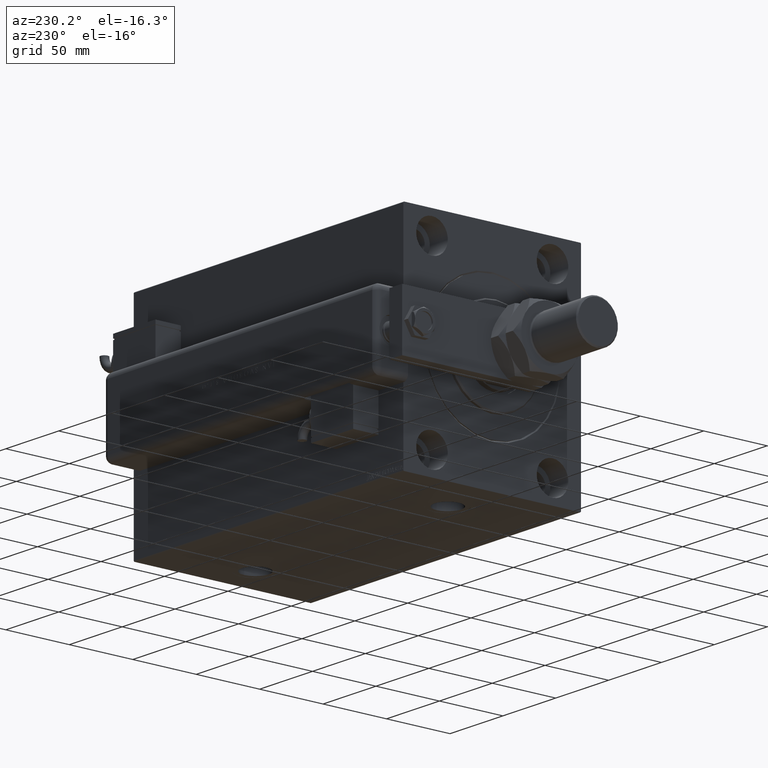
[diagram: clean part render]
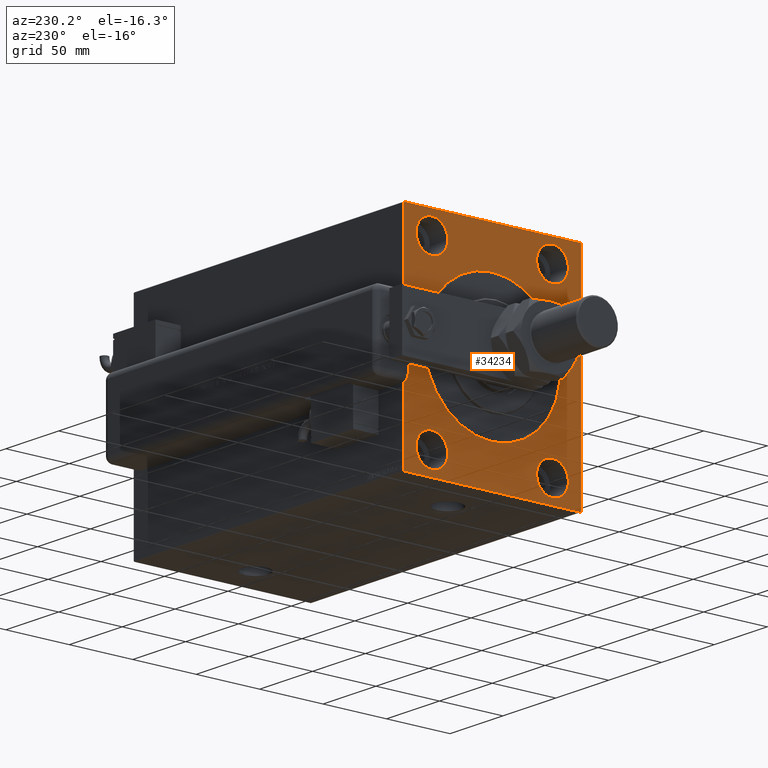
[diagram: same view with one face highlighted and labeled with its STEP entity id]
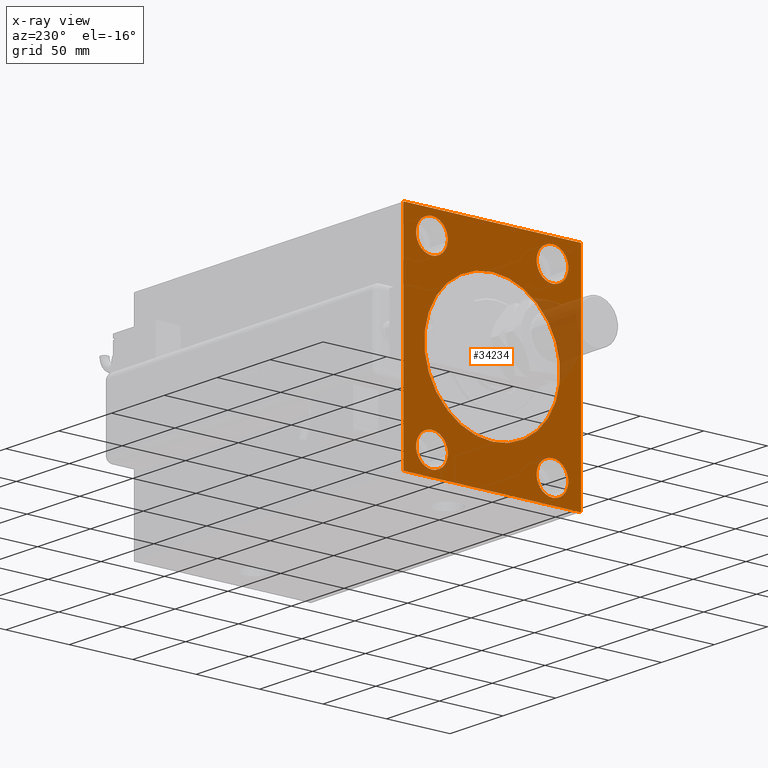
[diagram: x-ray of the same camera — body ghosted, the highlighted face saturated]
A machine part, auxiliary view. The second image highlights one B-rep face of the part: STEP entity #34234.
The next image is the same camera in x-ray: the body ghosted, the highlighted face saturated — about 8% of this face is hidden behind the body in this view.
In plain terms, the highlighted planar face has unit normal (1, 0, 0).
Its self-contained STEP definition (entity closure, byte-faithful):
#172 = EDGE_LOOP ( 'NONE', ( #23786, #2843 ) ) ;
#1393 = CIRCLE ( 'NONE', #27305, 12.50000000000001066 ) ;
#1499 = CARTESIAN_POINT ( 'NONE',  ( 0.000000000000000000, -69.50000000000001421, -85.00000000000002842 ) ) ;
#1569 = AXIS2_PLACEMENT_3D ( 'NONE', #56471, #4195, #57083 ) ;
#2096 = VERTEX_POINT ( 'NONE', #31965 ) ;
#2843 = ORIENTED_EDGE ( 'NONE', *, *, #39571, .F. ) ;
#3227 = ORIENTED_EDGE ( 'NONE', *, *, #57774, .F. ) ;
#3609 = CIRCLE ( 'NONE', #38409, 12.49999999999999645 ) ;
#3625 = EDGE_LOOP ( 'NONE', ( #41896, #24014 ) ) ;
#4195 = DIRECTION ( 'NONE',  ( -1.000000000000000000, 0.000000000000000000, 0.000000000000000000 ) ) ;
#4505 = CARTESIAN_POINT ( 'NONE',  ( 0.000000000000000000, 0.000000000000000000, 0.000000000000000000 ) ) ;
#4669 = ORIENTED_EDGE ( 'NONE', *, *, #59352, .F. ) ;
#5504 = EDGE_LOOP ( 'NONE', ( #21534, #37986 ) ) ;
#6288 = CARTESIAN_POINT ( 'NONE',  ( 0.000000000000000000, 70.00000000000002842, -84.50000000000009948 ) ) ;
#6424 = CARTESIAN_POINT ( 'NONE',  ( 0.000000000000000000, -69.99999999999998579, 84.99999999999998579 ) ) ;
#6921 = FACE_BOUND ( 'NONE', #5504, .T. ) ;
#7208 = CIRCLE ( 'NONE', #40966, 12.49999999999999645 ) ;
#7609 = AXIS2_PLACEMENT_3D ( 'NONE', #32703, #61344, #28357 ) ;
#8015 = LINE ( 'NONE', #27010, #8985 ) ;
#8279 = AXIS2_PLACEMENT_3D ( 'NONE', #4505, #50874, #22266 ) ;
#8603 = VECTOR ( 'NONE', #57216, 1000.000000000000000 ) ;
#8985 = VECTOR ( 'NONE', #52797, 1000.000000000000000 ) ;
#9254 = CARTESIAN_POINT ( 'NONE',  ( 0.000000000000000000, 70.00000000000002842, -84.50000000000009948 ) ) ;
#9409 = DIRECTION ( 'NONE',  ( 1.000000000000000000, 0.000000000000000000, 0.000000000000000000 ) ) ;
#9486 = CARTESIAN_POINT ( 'NONE',  ( 0.000000000000000000, 70.00000000000001421, 84.50000000000001421 ) ) ;
#9527 = ORIENTED_EDGE ( 'NONE', *, *, #50707, .F. ) ;
#9697 = CARTESIAN_POINT ( 'NONE',  ( 0.000000000000000000, 47.50000000000000711, -80.00000000000000000 ) ) ;
#10189 = LINE ( 'NONE', #58405, #51091 ) ;
#10246 = CIRCLE ( 'NONE', #55945, 12.50000000000001066 ) ;
#10365 = VERTEX_POINT ( 'NONE', #9486 ) ;
#10935 = DIRECTION ( 'NONE',  ( -1.000000000000000000, 0.000000000000000000, 0.000000000000000000 ) ) ;
#12236 = EDGE_LOOP ( 'NONE', ( #4669, #49244 ) ) ;
#12333 = AXIS2_PLACEMENT_3D ( 'NONE', #23741, #9409, #28402 ) ;
#12751 = LINE ( 'NONE', #16515, #46189 ) ;
#13609 = DIRECTION ( 'NONE',  ( 0.000000000000000000, -1.000000000000000000, -9.912705577010325549E-17 ) ) ;
#14920 = VERTEX_POINT ( 'NONE', #38429 ) ;
#15482 = DIRECTION ( 'NONE',  ( -0.000000000000000000, 0.7071067811865474617, 0.7071067811865474617 ) ) ;
#15624 = EDGE_CURVE ( 'NONE', #20989, #31936, #30074, .T. ) ;
#15872 = VERTEX_POINT ( 'NONE', #52729 ) ;
#16160 = CARTESIAN_POINT ( 'NONE',  ( 0.000000000000000000, 47.50000000000000711, 67.50000000000000000 ) ) ;
#16256 = EDGE_CURVE ( 'NONE', #14920, #46933, #33176, .T. ) ;
#16382 = DIRECTION ( 'NONE',  ( 0.000000000000000000, 0.000000000000000000, -1.000000000000000000 ) ) ;
#16515 = CARTESIAN_POINT ( 'NONE',  ( 0.000000000000000000, 69.50000000000004263, 85.00000000000000000 ) ) ;
#16575 = FACE_BOUND ( 'NONE', #37836, .T. ) ;
#16913 = DIRECTION ( 'NONE',  ( -1.000000000000000000, 0.000000000000000000, 0.000000000000000000 ) ) ;
#17621 = AXIS2_PLACEMENT_3D ( 'NONE', #16160, #53801, #19912 ) ;
#17786 = ORIENTED_EDGE ( 'NONE', *, *, #34783, .T. ) ;
#18433 = EDGE_CURVE ( 'NONE', #31216, #10365, #12751, .T. ) ;
#18457 = CARTESIAN_POINT ( 'NONE',  ( 0.000000000000000000, -69.50000000000001421, 84.99999999999998579 ) ) ;
#18662 = CARTESIAN_POINT ( 'NONE',  ( 0.000000000000000000, -69.99999999999998579, -85.00000000000002842 ) ) ;
#18910 = CARTESIAN_POINT ( 'NONE',  ( 0.000000000000000000, 70.00000000000001421, 85.00000000000000000 ) ) ;
#19889 = CARTESIAN_POINT ( 'NONE',  ( 0.000000000000000000, -69.50000000000001421, -85.00000000000002842 ) ) ;
#19912 = DIRECTION ( 'NONE',  ( 0.000000000000000000, 0.000000000000000000, 1.000000000000000000 ) ) ;
#20170 = VERTEX_POINT ( 'NONE', #48665 ) ;
#20629 = CARTESIAN_POINT ( 'NONE',  ( 0.000000000000000000, 0.000000000000000000, 0.000000000000000000 ) ) ;
#20936 = FACE_OUTER_BOUND ( 'NONE', #25347, .T. ) ;
#20989 = VERTEX_POINT ( 'NONE', #57194 ) ;
#21529 = FACE_BOUND ( 'NONE', #12236, .T. ) ;
#21534 = ORIENTED_EDGE ( 'NONE', *, *, #16256, .T. ) ;
#21655 = VERTEX_POINT ( 'NONE', #49529 ) ;
#22266 = DIRECTION ( 'NONE',  ( 0.000000000000000000, 0.000000000000000000, -1.000000000000000000 ) ) ;
#22416 = AXIS2_PLACEMENT_3D ( 'NONE', #41782, #47041, #41473 ) ;
#22510 = CIRCLE ( 'NONE', #7609, 12.50000000000001066 ) ;
#23122 = EDGE_CURVE ( 'NONE', #56499, #23623, #32635, .T. ) ;
#23483 = CIRCLE ( 'NONE', #1569, 12.49999999999999645 ) ;
#23623 = VERTEX_POINT ( 'NONE', #33785 ) ;
#23741 = CARTESIAN_POINT ( 'NONE',  ( 0.000000000000000000, 0.000000000000000000, 0.000000000000000000 ) ) ;
#23786 = ORIENTED_EDGE ( 'NONE', *, *, #54713, .F. ) ;
#24014 = ORIENTED_EDGE ( 'NONE', *, *, #53118, .F. ) ;
#24348 = EDGE_CURVE ( 'NONE', #58361, #20170, #10246, .T. ) ;
#24988 = VERTEX_POINT ( 'NONE', #9697 ) ;
#25347 = EDGE_LOOP ( 'NONE', ( #60012, #51747, #35967, #55125, #9527, #57657, #33149, #17786 ) ) ;
#25592 = CARTESIAN_POINT ( 'NONE',  ( 0.000000000000000000, -47.49999999999999289, -80.00000000000000000 ) ) ;
#25889 = EDGE_CURVE ( 'NONE', #46933, #14920, #34136, .T. ) ;
#26026 = CARTESIAN_POINT ( 'NONE',  ( 0.000000000000000000, -69.99999999999998579, -84.50000000000004263 ) ) ;
#26093 = DIRECTION ( 'NONE',  ( -1.000000000000000000, 0.000000000000000000, 0.000000000000000000 ) ) ;
#26208 = DIRECTION ( 'NONE',  ( 0.000000000000000000, 0.000000000000000000, -1.000000000000000000 ) ) ;
#27010 = CARTESIAN_POINT ( 'NONE',  ( 0.000000000000000000, 70.00000000000002842, -85.00000000000001421 ) ) ;
#27305 = AXIS2_PLACEMENT_3D ( 'NONE', #31820, #16913, #37100 ) ;
#27918 = DIRECTION ( 'NONE',  ( 0.000000000000000000, 0.000000000000000000, 1.000000000000000000 ) ) ;
#27998 = VERTEX_POINT ( 'NONE', #6288 ) ;
#28126 = ORIENTED_EDGE ( 'NONE', *, *, #36433, .F. ) ;
#28242 = DIRECTION ( 'NONE',  ( 0.000000000000000000, -0.7071067811865376918, -0.7071067811865574537 ) ) ;
#28357 = DIRECTION ( 'NONE',  ( 0.000000000000000000, 0.000000000000000000, 1.000000000000000000 ) ) ;
#28402 = DIRECTION ( 'NONE',  ( 0.000000000000000000, 0.000000000000000000, -1.000000000000000000 ) ) ;
#28413 = VECTOR ( 'NONE', #28242, 999.9999999999998863 ) ;
#28548 = EDGE_CURVE ( 'NONE', #20989, #52746, #10189, .T. ) ;
#29617 = DIRECTION ( 'NONE',  ( 0.000000000000000000, 0.000000000000000000, 1.000000000000000000 ) ) ;
#30074 = LINE ( 'NONE', #6424, #51025 ) ;
#31216 = VERTEX_POINT ( 'NONE', #49789 ) ;
#31699 = EDGE_CURVE ( 'NONE', #27998, #23623, #42561, .T. ) ;
#31820 = CARTESIAN_POINT ( 'NONE',  ( 0.000000000000000000, 47.50000000000000711, 67.50000000000000000 ) ) ;
#31936 = VERTEX_POINT ( 'NONE', #26026 ) ;
#31965 = CARTESIAN_POINT ( 'NONE',  ( 0.000000000000000000, 47.50000000000000711, 55.00000000000000000 ) ) ;
#32635 = LINE ( 'NONE', #18662, #8603 ) ;
#32703 = CARTESIAN_POINT ( 'NONE',  ( 0.000000000000000000, -47.49999999999997868, 67.50000000000000000 ) ) ;
#33149 = ORIENTED_EDGE ( 'NONE', *, *, #23122, .F. ) ;
#33176 = CIRCLE ( 'NONE', #12333, 53.50000000000002842 ) ;
#33785 = CARTESIAN_POINT ( 'NONE',  ( 0.000000000000000000, 69.50000000000012790, -85.00000000000001421 ) ) ;
#34136 = CIRCLE ( 'NONE', #8279, 53.50000000000002842 ) ;
#34234 = ADVANCED_FACE ( 'NONE', ( #6921, #16575, #21529, #44285, #55116, #20936 ), #49836, .F. ) ;
#34465 = VERTEX_POINT ( 'NONE', #47633 ) ;
#34783 = EDGE_CURVE ( 'NONE', #56499, #31936, #38245, .T. ) ;
#34814 = CARTESIAN_POINT ( 'NONE',  ( 0.000000000000000000, -47.49999999999997868, 55.00000000000000000 ) ) ;
#35967 = ORIENTED_EDGE ( 'NONE', *, *, #47545, .F. ) ;
#36140 = DIRECTION ( 'NONE',  ( 1.000000000000000000, 0.000000000000000000, 0.000000000000000000 ) ) ;
#36392 = DIRECTION ( 'NONE',  ( -0.000000000000000000, 0.7071067811865376918, -0.7071067811865573427 ) ) ;
#36433 = EDGE_CURVE ( 'NONE', #24988, #34465, #23483, .T. ) ;
#36803 = EDGE_CURVE ( 'NONE', #21655, #43686, #3609, .T. ) ;
#37100 = DIRECTION ( 'NONE',  ( 0.000000000000000000, 0.000000000000000000, 1.000000000000000000 ) ) ;
#37245 = LINE ( 'NONE', #18910, #49566 ) ;
#37836 = EDGE_LOOP ( 'NONE', ( #3227, #28126 ) ) ;
#37986 = ORIENTED_EDGE ( 'NONE', *, *, #25889, .T. ) ;
#38245 = LINE ( 'NONE', #19889, #46252 ) ;
#38409 = AXIS2_PLACEMENT_3D ( 'NONE', #43613, #10935, #29617 ) ;
#38429 = CARTESIAN_POINT ( 'NONE',  ( 0.000000000000000000, 0.000000000000000000, 53.50000000000002842 ) ) ;
#38501 = CIRCLE ( 'NONE', #17621, 12.50000000000001066 ) ;
#39571 = EDGE_CURVE ( 'NONE', #2096, #15872, #38501, .T. ) ;
#40966 = AXIS2_PLACEMENT_3D ( 'NONE', #50945, #26093, #40999 ) ;
#40999 = DIRECTION ( 'NONE',  ( 0.000000000000000000, 0.000000000000000000, 1.000000000000000000 ) ) ;
#41473 = DIRECTION ( 'NONE',  ( 0.000000000000000000, 0.000000000000000000, 1.000000000000000000 ) ) ;
#41782 = CARTESIAN_POINT ( 'NONE',  ( 0.000000000000000000, 47.50000000000000711, -67.50000000000000000 ) ) ;
#41896 = ORIENTED_EDGE ( 'NONE', *, *, #36803, .F. ) ;
#41916 = DIRECTION ( 'NONE',  ( -1.000000000000000000, 0.000000000000000000, 0.000000000000000000 ) ) ;
#42329 = CIRCLE ( 'NONE', #22416, 12.49999999999999645 ) ;
#42561 = LINE ( 'NONE', #9254, #28413 ) ;
#43613 = CARTESIAN_POINT ( 'NONE',  ( 0.000000000000000000, -47.49999999999999289, -67.50000000000000000 ) ) ;
#43686 = VERTEX_POINT ( 'NONE', #25592 ) ;
#44224 = AXIS2_PLACEMENT_3D ( 'NONE', #20629, #36140, #26208 ) ;
#44285 = FACE_BOUND ( 'NONE', #172, .T. ) ;
#46189 = VECTOR ( 'NONE', #36392, 1000.000000000000114 ) ;
#46252 = VECTOR ( 'NONE', #57222, 1000.000000000000114 ) ;
#46933 = VERTEX_POINT ( 'NONE', #56526 ) ;
#47041 = DIRECTION ( 'NONE',  ( -1.000000000000000000, 0.000000000000000000, 0.000000000000000000 ) ) ;
#47545 = EDGE_CURVE ( 'NONE', #31216, #52746, #37245, .T. ) ;
#47633 = CARTESIAN_POINT ( 'NONE',  ( 0.000000000000000000, 47.50000000000000711, -55.00000000000000711 ) ) ;
#48665 = CARTESIAN_POINT ( 'NONE',  ( 0.000000000000000000, -47.49999999999997868, 80.00000000000001421 ) ) ;
#49244 = ORIENTED_EDGE ( 'NONE', *, *, #24348, .F. ) ;
#49529 = CARTESIAN_POINT ( 'NONE',  ( 0.000000000000000000, -47.49999999999999289, -55.00000000000000711 ) ) ;
#49566 = VECTOR ( 'NONE', #13609, 1000.000000000000000 ) ;
#49789 = CARTESIAN_POINT ( 'NONE',  ( 0.000000000000000000, 69.50000000000004263, 85.00000000000000000 ) ) ;
#49836 = PLANE ( 'NONE',  #44224 ) ;
#50707 = EDGE_CURVE ( 'NONE', #27998, #10365, #8015, .T. ) ;
#50874 = DIRECTION ( 'NONE',  ( 1.000000000000000000, 0.000000000000000000, 0.000000000000000000 ) ) ;
#50945 = CARTESIAN_POINT ( 'NONE',  ( 0.000000000000000000, -47.49999999999999289, -67.50000000000000000 ) ) ;
#51025 = VECTOR ( 'NONE', #16382, 1000.000000000000000 ) ;
#51091 = VECTOR ( 'NONE', #15482, 1000.000000000000114 ) ;
#51747 = ORIENTED_EDGE ( 'NONE', *, *, #28548, .T. ) ;
#52729 = CARTESIAN_POINT ( 'NONE',  ( 0.000000000000000000, 47.50000000000000711, 80.00000000000001421 ) ) ;
#52746 = VERTEX_POINT ( 'NONE', #18457 ) ;
#52797 = DIRECTION ( 'NONE',  ( 0.000000000000000000, -8.163404592832031500E-17, 1.000000000000000000 ) ) ;
#53118 = EDGE_CURVE ( 'NONE', #43686, #21655, #7208, .T. ) ;
#53801 = DIRECTION ( 'NONE',  ( -1.000000000000000000, 0.000000000000000000, 0.000000000000000000 ) ) ;
#54713 = EDGE_CURVE ( 'NONE', #15872, #2096, #1393, .T. ) ;
#55116 = FACE_BOUND ( 'NONE', #3625, .T. ) ;
#55125 = ORIENTED_EDGE ( 'NONE', *, *, #18433, .T. ) ;
#55945 = AXIS2_PLACEMENT_3D ( 'NONE', #57136, #41916, #27918 ) ;
#56471 = CARTESIAN_POINT ( 'NONE',  ( 0.000000000000000000, 47.50000000000000711, -67.50000000000000000 ) ) ;
#56499 = VERTEX_POINT ( 'NONE', #1499 ) ;
#56526 = CARTESIAN_POINT ( 'NONE',  ( 0.000000000000000000, 6.551860375438343048E-15, -53.50000000000002842 ) ) ;
#57083 = DIRECTION ( 'NONE',  ( 0.000000000000000000, 0.000000000000000000, 1.000000000000000000 ) ) ;
#57136 = CARTESIAN_POINT ( 'NONE',  ( 0.000000000000000000, -47.49999999999997868, 67.50000000000000000 ) ) ;
#57194 = CARTESIAN_POINT ( 'NONE',  ( 0.000000000000000000, -69.99999999999998579, 84.50000000000001421 ) ) ;
#57216 = DIRECTION ( 'NONE',  ( 0.000000000000000000, 1.000000000000000000, 9.912705577010325549E-17 ) ) ;
#57222 = DIRECTION ( 'NONE',  ( -0.000000000000000000, -0.7071067811865376918, 0.7071067811865573427 ) ) ;
#57657 = ORIENTED_EDGE ( 'NONE', *, *, #31699, .T. ) ;
#57774 = EDGE_CURVE ( 'NONE', #34465, #24988, #42329, .T. ) ;
#58361 = VERTEX_POINT ( 'NONE', #34814 ) ;
#58405 = CARTESIAN_POINT ( 'NONE',  ( 0.000000000000000000, -69.99999999999998579, 84.50000000000001421 ) ) ;
#59352 = EDGE_CURVE ( 'NONE', #20170, #58361, #22510, .T. ) ;
#60012 = ORIENTED_EDGE ( 'NONE', *, *, #15624, .F. ) ;
#61344 = DIRECTION ( 'NONE',  ( -1.000000000000000000, 0.000000000000000000, 0.000000000000000000 ) ) ;